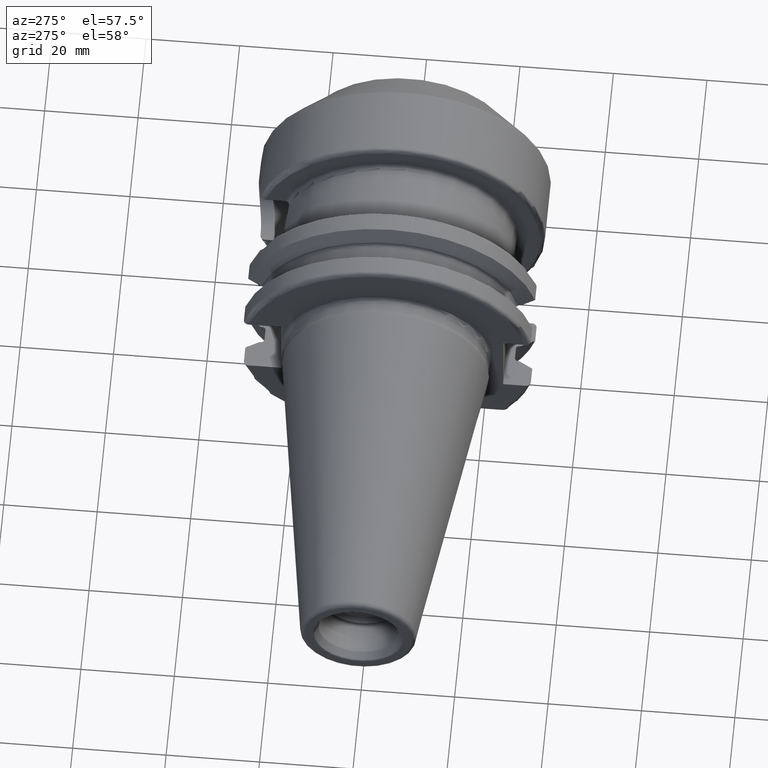
[diagram: clean part render]
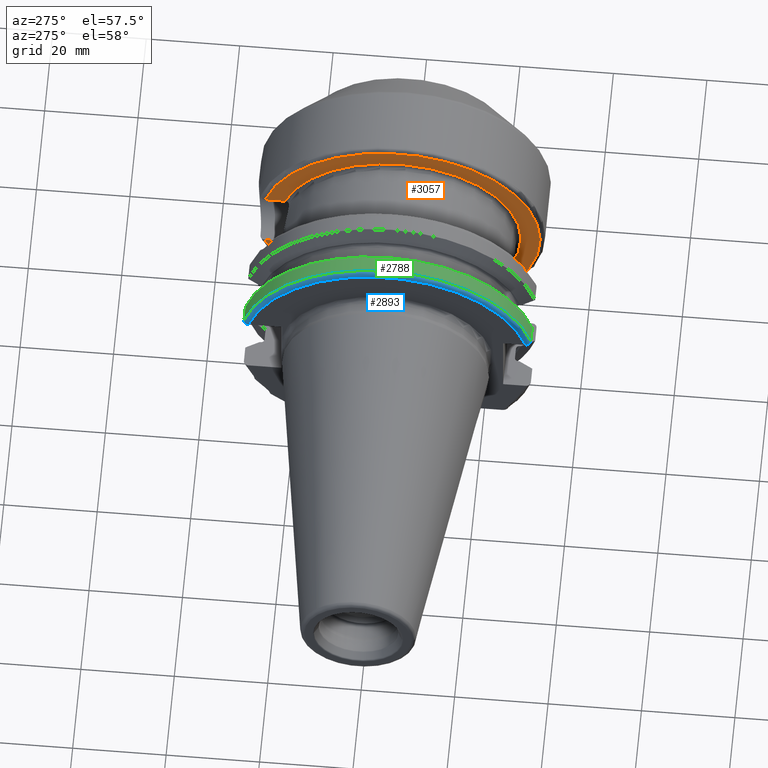
[diagram: same view with three faces highlighted in distinct colors, each labeled with its STEP entity id]
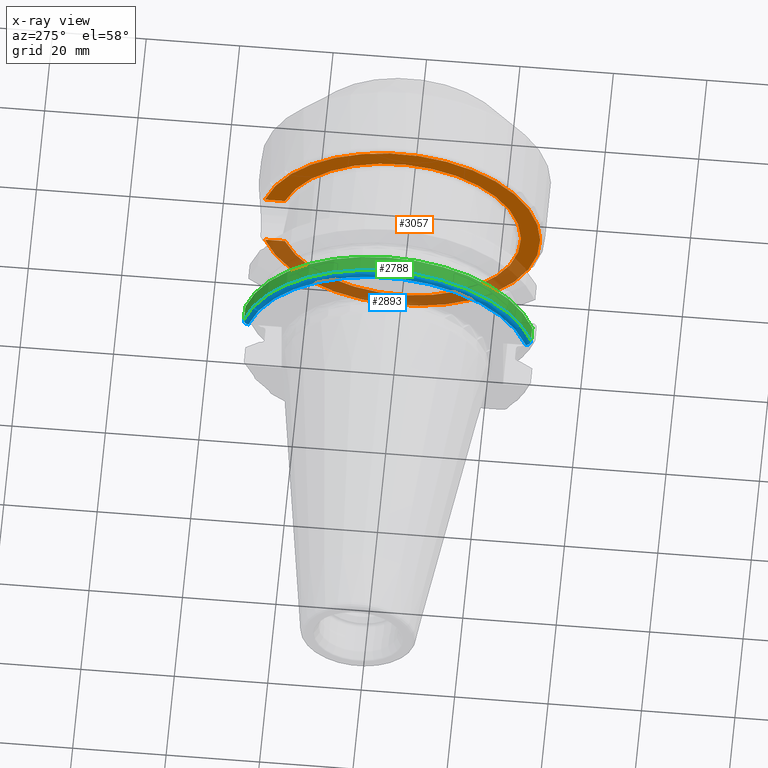
[diagram: x-ray of the same camera — body ghosted, the three highlighted faces saturated]
A machine part, auxiliary view with three faces highlighted in distinct colors.
The next image is the same camera in x-ray (body ghosted, the three faces saturated) — at least one of them is partly hidden behind the body in this view.
Their STEP definitions:

[orange] entity #3057 — the highlighted planar face has unit normal (1, 0, 0).
#1253=CARTESIAN_POINT('',(3.505E1,0.E0,0.E0));
#1254=DIRECTION('',(1.E0,0.E0,0.E0));
#1255=DIRECTION('',(0.E0,9.518079339851E-1,3.066947290107E-1));
#1256=AXIS2_PLACEMENT_3D('',#1253,#1254,#1255);
#1267=CARTESIAN_POINT('',(3.505E1,2.465182549021E1,-7.943393481378E0));
#1269=CARTESIAN_POINT('',(3.505E1,2.465182549021E1,7.943393481378E0));
#1280=DIRECTION('',(0.E0,1.E0,0.E0));
#1281=VECTOR('',#1280,4.277441697186E0);
#1282=CARTESIAN_POINT('',(3.505E1,2.465182549021E1,-7.943393481378E0));
#1283=LINE('',#1282,#1281);
#1284=DIRECTION('',(0.E0,1.E0,0.E0));
#1285=VECTOR('',#1284,4.277441697186E0);
#1286=CARTESIAN_POINT('',(3.505E1,2.465182549021E1,7.943393481378E0));
#1287=LINE('',#1286,#1285);
#1288=CARTESIAN_POINT('',(3.505E1,2.892926718740E1,-7.943393481378E0));
#1299=CARTESIAN_POINT('',(3.505E1,0.E0,0.E0));
#1300=DIRECTION('',(-1.E0,0.E0,0.E0));
#1301=DIRECTION('',(0.E0,9.643089062467E-1,-2.647797827126E-1));
#1302=AXIS2_PLACEMENT_3D('',#1299,#1300,#1301);
#1313=CARTESIAN_POINT('',(3.505E1,2.892926718740E1,7.943393481378E0));
#1796=VERTEX_POINT('',#1269);
#1797=VERTEX_POINT('',#1267);
#1798=VERTEX_POINT('',#1313);
#1799=VERTEX_POINT('',#1288);
#3045=CARTESIAN_POINT('',(3.505E1,0.E0,0.E0));
#3046=DIRECTION('',(1.E0,0.E0,0.E0));
#3047=DIRECTION('',(0.E0,-1.E0,0.E0));
#3048=AXIS2_PLACEMENT_3D('',#3045,#3046,#3047);
#3049=PLANE('',#3048);
#3050=ORIENTED_EDGE('',*,*,#2138,.F.);
#3051=ORIENTED_EDGE('',*,*,#3036,.F.);
#3052=ORIENTED_EDGE('',*,*,#2077,.T.);
#3054=ORIENTED_EDGE('',*,*,#3053,.F.);
#3055=EDGE_LOOP('',(#3050,#3051,#3052,#3054));
#3056=FACE_OUTER_BOUND('',#3055,.F.);
#3057=ADVANCED_FACE('',(#3056),#3049,.F.);
#1257=CIRCLE('',#1256,2.59E1);
#1303=CIRCLE('',#1302,3.E1);
#2077=EDGE_CURVE('',#1796,#1798,#1287,.T.);
#2138=EDGE_CURVE('',#1797,#1799,#1283,.T.);
#3036=EDGE_CURVE('',#1796,#1797,#1257,.T.);
#3053=EDGE_CURVE('',#1799,#1798,#1303,.T.);

[blue] entity #2893 — the highlighted toroidal blend (fillet) surface has major radius 30.7625 mm and minor (blend) radius 1 mm.
#492=CARTESIAN_POINT('',(3.2E0,0.E0,0.E0));
#493=DIRECTION('',(1.E0,0.E0,0.E0));
#494=DIRECTION('',(0.E0,9.647119303464E-1,2.633075985372E-1));
#495=AXIS2_PLACEMENT_3D('',#492,#493,#494);
#1010=CARTESIAN_POINT('',(4.2E0,3.071231684927E1,8.1E0));
#1011=CARTESIAN_POINT('',(4.122975496592E0,3.071231684927E1,8.1E0));
#1012=CARTESIAN_POINT('',(3.973434275890E0,3.069445502310E1,8.1E0));
#1013=CARTESIAN_POINT('',(3.757148362145E0,3.061539366421E1,8.1E0));
#1014=CARTESIAN_POINT('',(3.565367695912E0,3.048860164744E1,8.1E0));
#1015=CARTESIAN_POINT('',(3.407348762296E0,3.032249788839E1,8.1E0));
#1016=CARTESIAN_POINT('',(3.289450816159E0,3.012561805664E1,8.1E0));
#1017=CARTESIAN_POINT('',(3.216670609282E0,2.990711670215E1,8.1E0));
#1018=CARTESIAN_POINT('',(3.2E0,2.975517161523E1,8.1E0));
#1019=CARTESIAN_POINT('',(3.2E0,2.967695075728E1,8.1E0));
#1021=CARTESIAN_POINT('',(4.2E0,0.E0,0.E0));
#1022=DIRECTION('',(1.E0,0.E0,0.E0));
#1023=DIRECTION('',(0.E0,9.669363825036E-1,2.550177095632E-1));
#1024=AXIS2_PLACEMENT_3D('',#1021,#1022,#1023);
#1026=CARTESIAN_POINT('',(3.2E0,-2.967695075728E1,8.1E0));
#1027=CARTESIAN_POINT('',(3.2E0,-2.975535829664E1,8.1E0));
#1028=CARTESIAN_POINT('',(3.216736704136E0,-2.990767511790E1,8.1E0));
#1029=CARTESIAN_POINT('',(3.290003023403E0,-3.012696803037E1,8.1E0));
#1030=CARTESIAN_POINT('',(3.408578685874E0,-3.032415560769E1,8.1E0));
#1031=CARTESIAN_POINT('',(3.566974678455E0,-3.048991705446E1,8.1E0));
#1032=CARTESIAN_POINT('',(3.758498450120E0,-3.061600082070E1,8.1E0));
#1033=CARTESIAN_POINT('',(3.973995795704E0,-3.069452712052E1,8.1E0));
#1034=CARTESIAN_POINT('',(4.123165215148E0,-3.071231684927E1,8.1E0));
#1035=CARTESIAN_POINT('',(4.2E0,-3.071231684927E1,8.1E0));
#1667=CARTESIAN_POINT('',(4.2E0,3.071231684927E1,8.1E0));
#1668=VERTEX_POINT('',#1667);
#1671=CARTESIAN_POINT('',(4.2E0,-3.071231684927E1,8.1E0));
#1672=VERTEX_POINT('',#1671);
#1675=CARTESIAN_POINT('',(3.2E0,2.967695075728E1,8.1E0));
#1677=VERTEX_POINT('',#1675);
#1693=CARTESIAN_POINT('',(3.2E0,-2.967695075728E1,8.1E0));
#1694=VERTEX_POINT('',#1693);
#2882=CARTESIAN_POINT('',(4.2E0,0.E0,0.E0));
#2883=DIRECTION('',(1.E0,0.E0,0.E0));
#2884=DIRECTION('',(0.E0,-1.E0,0.E0));
#2885=AXIS2_PLACEMENT_3D('',#2882,#2883,#2884);
#2886=TOROIDAL_SURFACE('',#2885,3.07625E1,1.E0);
#2887=ORIENTED_EDGE('',*,*,#2037,.F.);
#2888=ORIENTED_EDGE('',*,*,#2784,.T.);
#2889=ORIENTED_EDGE('',*,*,#2834,.F.);
#2890=ORIENTED_EDGE('',*,*,#2402,.F.);
#2891=EDGE_LOOP('',(#2887,#2888,#2889,#2890));
#2892=FACE_OUTER_BOUND('',#2891,.F.);
#2893=ADVANCED_FACE('',(#2892),#2886,.T.);
#496=CIRCLE('',#495,3.07625E1);
#1020=B_SPLINE_CURVE_WITH_KNOTS('',3,(#1010,#1011,#1012,#1013,#1014,#1015,#1016,
#1017,#1018,#1019),.UNSPECIFIED.,.F.,.F.,(4,1,1,1,1,1,1,4),(0.E0,
1.428571428571E-1,2.857142857143E-1,4.285714285714E-1,5.714285714286E-1,
7.142857142857E-1,8.571428571429E-1,1.E0),.UNSPECIFIED.);
#1025=CIRCLE('',#1024,3.17625E1);
#1036=B_SPLINE_CURVE_WITH_KNOTS('',3,(#1026,#1027,#1028,#1029,#1030,#1031,#1032,
#1033,#1034,#1035),.UNSPECIFIED.,.F.,.F.,(4,1,1,1,1,1,1,4),(0.E0,
1.428571428571E-1,2.857142857143E-1,4.285714285714E-1,5.714285714286E-1,
7.142857142857E-1,8.571428571429E-1,1.E0),.UNSPECIFIED.);
#2037=EDGE_CURVE('',#1668,#1677,#1020,.T.);
#2402=EDGE_CURVE('',#1677,#1694,#496,.T.);
#2784=EDGE_CURVE('',#1668,#1672,#1025,.T.);
#2834=EDGE_CURVE('',#1694,#1672,#1036,.T.);

[green] entity #2788 — the highlighted cylindrical surface (partial cylindrical patch) has radius 31.7625 mm, axis along (1, 0, 0).
#866=DIRECTION('',(1.E0,0.E0,0.E0));
#867=VECTOR('',#866,3.445946479578E0);
#868=CARTESIAN_POINT('',(4.2E0,3.071231684927E1,8.1E0));
#869=LINE('',#868,#867);
#870=CARTESIAN_POINT('',(7.645946479578E0,0.E0,0.E0));
#871=DIRECTION('',(1.E0,0.E0,0.E0));
#872=DIRECTION('',(0.E0,9.669363825036E-1,2.550177095632E-1));
#873=AXIS2_PLACEMENT_3D('',#870,#871,#872);
#875=DIRECTION('',(1.E0,0.E0,0.E0));
#876=VECTOR('',#875,3.445946479578E0);
#877=CARTESIAN_POINT('',(4.2E0,-3.071231684927E1,8.1E0));
#878=LINE('',#877,#876);
#897=CARTESIAN_POINT('',(7.645946479578E0,3.071231684927E1,8.1E0));
#909=CARTESIAN_POINT('',(7.645946479578E0,-3.071231684927E1,8.1E0));
#1021=CARTESIAN_POINT('',(4.2E0,0.E0,0.E0));
#1022=DIRECTION('',(1.E0,0.E0,0.E0));
#1023=DIRECTION('',(0.E0,9.669363825036E-1,2.550177095632E-1));
#1024=AXIS2_PLACEMENT_3D('',#1021,#1022,#1023);
#1647=VERTEX_POINT('',#897);
#1648=VERTEX_POINT('',#909);
#1667=CARTESIAN_POINT('',(4.2E0,3.071231684927E1,8.1E0));
#1668=VERTEX_POINT('',#1667);
#1671=CARTESIAN_POINT('',(4.2E0,-3.071231684927E1,8.1E0));
#1672=VERTEX_POINT('',#1671);
#2774=CARTESIAN_POINT('',(-7.2615E1,0.E0,0.E0));
#2775=DIRECTION('',(1.E0,0.E0,0.E0));
#2776=DIRECTION('',(0.E0,-1.E0,0.E0));
#2777=AXIS2_PLACEMENT_3D('',#2774,#2775,#2776);
#2778=CYLINDRICAL_SURFACE('',#2777,3.17625E1);
#2779=ORIENTED_EDGE('',*,*,#2035,.T.);
#2781=ORIENTED_EDGE('',*,*,#2780,.T.);
#2783=ORIENTED_EDGE('',*,*,#2782,.F.);
#2785=ORIENTED_EDGE('',*,*,#2784,.F.);
#2786=EDGE_LOOP('',(#2779,#2781,#2783,#2785));
#2787=FACE_OUTER_BOUND('',#2786,.F.);
#2788=ADVANCED_FACE('',(#2787),#2778,.T.);
#874=CIRCLE('',#873,3.17625E1);
#1025=CIRCLE('',#1024,3.17625E1);
#2035=EDGE_CURVE('',#1668,#1647,#869,.T.);
#2780=EDGE_CURVE('',#1647,#1648,#874,.T.);
#2782=EDGE_CURVE('',#1672,#1648,#878,.T.);
#2784=EDGE_CURVE('',#1668,#1672,#1025,.T.);